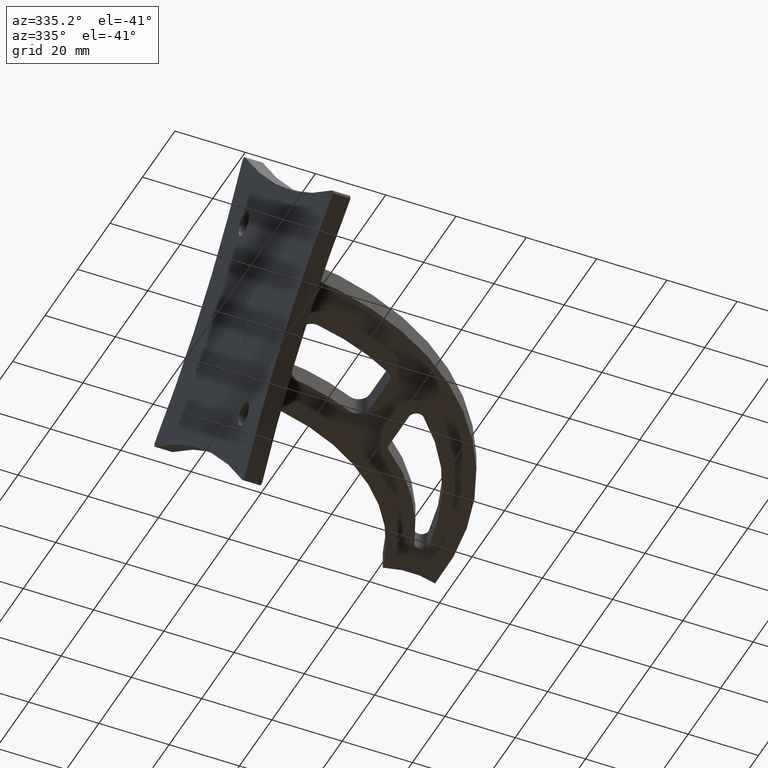
[diagram: clean part render]
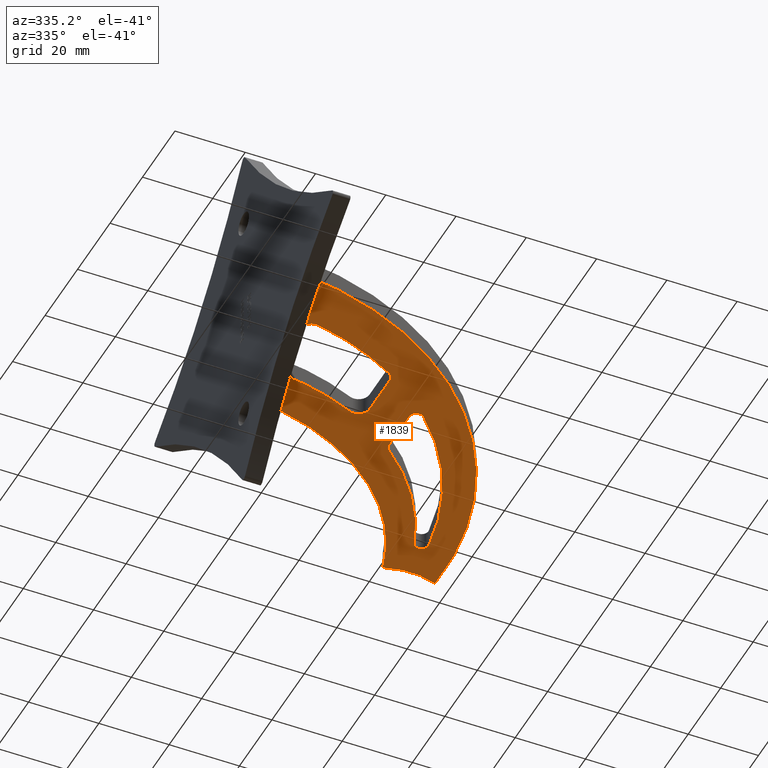
[diagram: same view with one face highlighted and labeled with its STEP entity id]
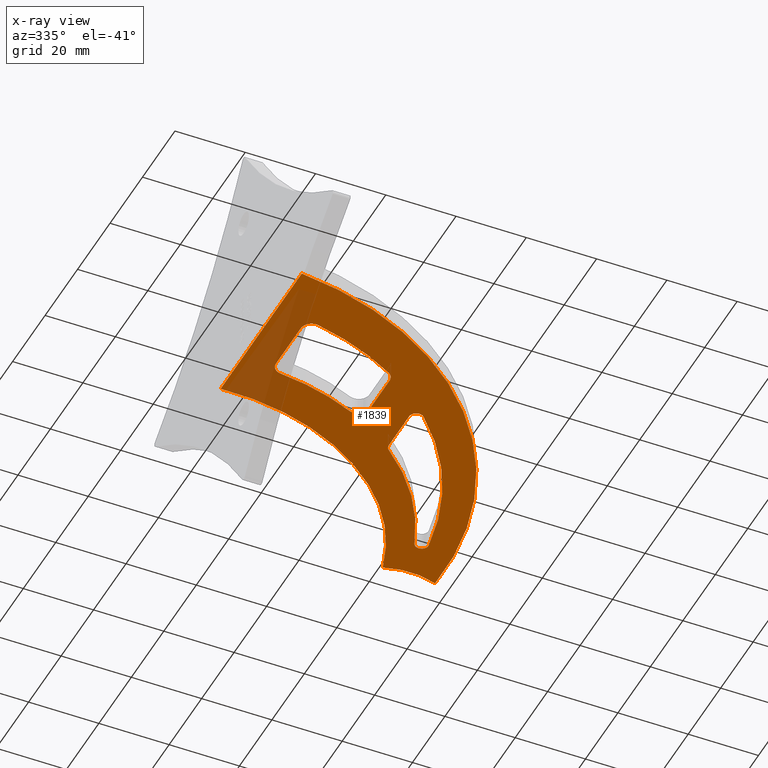
[diagram: x-ray of the same camera — body ghosted, the highlighted face saturated]
A machine part, auxiliary view. The second image highlights one B-rep face of the part: STEP entity #1839.
The next image is the same camera in x-ray: the body ghosted, the highlighted face saturated — about 14% of this face is hidden behind the body in this view.
In plain terms, the highlighted planar face has unit normal (-0, 0, 1).
Its self-contained STEP definition (entity closure, byte-faithful):
#3 = EDGE_LOOP ( 'NONE', ( #8002, #1639, #2009, #7990, #4863, #215 ) ) ;
#71 = CARTESIAN_POINT ( 'NONE',  ( 70.98734158708305131, 59.27709275273562639, 0.000000000000000000 ) ) ;
#215 = ORIENTED_EDGE ( 'NONE', *, *, #4008, .T. ) ;
#264 = AXIS2_PLACEMENT_3D ( 'NONE', #4804, #11192, #5710 ) ;
#277 = EDGE_LOOP ( 'NONE', ( #1228, #3364, #11414, #5668, #8763, #8888, #3012, #3107 ) ) ;
#311 = VERTEX_POINT ( 'NONE', #8605 ) ;
#359 = FACE_BOUND ( 'NONE', #277, .T. ) ;
#433 = EDGE_CURVE ( 'NONE', #10063, #11426, #7644, .T. ) ;
#461 = EDGE_CURVE ( 'NONE', #9744, #7342, #9773, .T. ) ;
#463 = DIRECTION ( 'NONE',  ( -0.000000000000000000, 0.000000000000000000, 1.000000000000000000 ) ) ;
#464 = CARTESIAN_POINT ( 'NONE',  ( 82.44622500956498357, 71.35072462010447225, 0.000000000000000000 ) ) ;
#644 = CIRCLE ( 'NONE', #11075, 2.000000000000001776 ) ;
#699 = CARTESIAN_POINT ( 'NONE',  ( -3.228785158426567659, 68.71510787128258357, 0.000000000000000000 ) ) ;
#724 = EDGE_CURVE ( 'NONE', #9744, #10556, #644, .T. ) ;
#1095 = CARTESIAN_POINT ( 'NONE',  ( 48.77328832485038390, 27.07069534578396741, 0.000000000000000000 ) ) ;
#1121 = EDGE_CURVE ( 'NONE', #1692, #10556, #11480, .T. ) ;
#1228 = ORIENTED_EDGE ( 'NONE', *, *, #433, .T. ) ;
#1298 = CARTESIAN_POINT ( 'NONE',  ( 50.77328832485039101, 27.07069534578396741, 0.000000000000000000 ) ) ;
#1424 = DIRECTION ( 'NONE',  ( 1.000000000000000000, 0.000000000000000000, 0.000000000000000000 ) ) ;
#1432 = VERTEX_POINT ( 'NONE', #5832 ) ;
#1506 = DIRECTION ( 'NONE',  ( -0.000000000000000000, 0.000000000000000000, 1.000000000000000000 ) ) ;
#1522 = DIRECTION ( 'NONE',  ( -5.534859863582859304E-16, 1.000000000000000000, 0.000000000000000000 ) ) ;
#1639 = ORIENTED_EDGE ( 'NONE', *, *, #461, .F. ) ;
#1692 = VERTEX_POINT ( 'NONE', #7865 ) ;
#1705 = DIRECTION ( 'NONE',  ( 1.000000000000000000, 0.000000000000000000, 0.000000000000000000 ) ) ;
#1839 = ADVANCED_FACE ( 'NONE', ( #10036, #3068, #359 ), #8224, .F. ) ;
#1879 = ORIENTED_EDGE ( 'NONE', *, *, #2036, .T. ) ;
#1979 = CARTESIAN_POINT ( 'NONE',  ( 38.27567402808483621, 16.22450941500441246, 0.000000000000000000 ) ) ;
#2009 = ORIENTED_EDGE ( 'NONE', *, *, #724, .T. ) ;
#2024 = EDGE_CURVE ( 'NONE', #3680, #9418, #7621, .T. ) ;
#2029 = CARTESIAN_POINT ( 'NONE',  ( 36.80419257749877460, 1.106397339219425291, 0.000000000000000000 ) ) ;
#2036 = EDGE_CURVE ( 'NONE', #9418, #311, #8616, .T. ) ;
#2074 = EDGE_CURVE ( 'NONE', #10405, #6074, #9478, .T. ) ;
#2171 = CIRCLE ( 'NONE', #5647, 21.20000000000006679 ) ;
#2207 = AXIS2_PLACEMENT_3D ( 'NONE', #9162, #3735, #5575 ) ;
#2260 = CARTESIAN_POINT ( 'NONE',  ( 74.66270863691524085, 58.39560010474465201, 0.000000000000000000 ) ) ;
#2381 = EDGE_CURVE ( 'NONE', #10283, #10063, #10589, .T. ) ;
#2383 = DIRECTION ( 'NONE',  ( -0.000000000000000000, 0.000000000000000000, 1.000000000000000000 ) ) ;
#2418 = CARTESIAN_POINT ( 'NONE',  ( 75.00000000000000000, 91.20000000000008811, 0.000000000000000000 ) ) ;
#2438 = CIRCLE ( 'NONE', #3780, 91.81161492634942078 ) ;
#2608 = CIRCLE ( 'NONE', #11041, 78.57211366772185102 ) ;
#2620 = DIRECTION ( 'NONE',  ( -0.000000000000000000, 0.000000000000000000, 1.000000000000000000 ) ) ;
#2630 = VERTEX_POINT ( 'NONE', #10838 ) ;
#2663 = CARTESIAN_POINT ( 'NONE',  ( 50.77328832485046917, 14.42823421798353500, 0.000000000000000000 ) ) ;
#2699 = VERTEX_POINT ( 'NONE', #8926 ) ;
#2810 = DIRECTION ( 'NONE',  ( 2.245724786051271897E-16, 1.000000000000000000, 0.000000000000000000 ) ) ;
#3012 = ORIENTED_EDGE ( 'NONE', *, *, #6920, .T. ) ;
#3025 = AXIS2_PLACEMENT_3D ( 'NONE', #7173, #2620, #1705 ) ;
#3068 = FACE_BOUND ( 'NONE', #3, .T. ) ;
#3107 = ORIENTED_EDGE ( 'NONE', *, *, #2381, .T. ) ;
#3124 = CARTESIAN_POINT ( 'NONE',  ( 10.48173249005537144, 86.77038962985369608, 0.000000000000000000 ) ) ;
#3183 = CIRCLE ( 'NONE', #10475, 69.64723672089489526 ) ;
#3187 = EDGE_CURVE ( 'NONE', #10381, #11426, #3183, .T. ) ;
#3364 = ORIENTED_EDGE ( 'NONE', *, *, #3187, .F. ) ;
#3465 = DIRECTION ( 'NONE',  ( -0.000000000000000000, 0.000000000000000000, 1.000000000000000000 ) ) ;
#3532 = AXIS2_PLACEMENT_3D ( 'NONE', #6745, #4882, #9462 ) ;
#3676 = DIRECTION ( 'NONE',  ( 1.000000000000000000, 0.000000000000000000, 0.000000000000000000 ) ) ;
#3680 = VERTEX_POINT ( 'NONE', #4523 ) ;
#3735 = DIRECTION ( 'NONE',  ( -0.000000000000000000, 0.000000000000000000, 1.000000000000000000 ) ) ;
#3780 = AXIS2_PLACEMENT_3D ( 'NONE', #9288, #6486, #8285 ) ;
#3793 = CARTESIAN_POINT ( 'NONE',  ( 11.59333400792531599, 13.07933353419807254, 0.000000000000000000 ) ) ;
#3879 = AXIS2_PLACEMENT_3D ( 'NONE', #4822, #8406, #4859 ) ;
#4008 = EDGE_CURVE ( 'NONE', #1432, #5505, #10356, .T. ) ;
#4104 = AXIS2_PLACEMENT_3D ( 'NONE', #6214, #7157, #3676 ) ;
#4220 = DIRECTION ( 'NONE',  ( -0.000000000000000000, 0.000000000000000000, 1.000000000000000000 ) ) ;
#4343 = CARTESIAN_POINT ( 'NONE',  ( 38.27567402808484331, 3.687798323975083559, 0.000000000000000000 ) ) ;
#4523 = CARTESIAN_POINT ( 'NONE',  ( 5.157091764337531993E-15, 24.99999999999999289, 0.000000000000000000 ) ) ;
#4616 = LINE ( 'NONE', #7568, #6603 ) ;
#4712 = VERTEX_POINT ( 'NONE', #464 ) ;
#4804 = CARTESIAN_POINT ( 'NONE',  ( 11.80121489772131405, -5.347321622484850323, 0.000000000000000000 ) ) ;
#4822 = CARTESIAN_POINT ( 'NONE',  ( 72.77916711941185213, 58.64514238942007296, 0.000000000000000000 ) ) ;
#4859 = DIRECTION ( 'NONE',  ( 1.000000000000000000, 0.000000000000000000, 0.000000000000000000 ) ) ;
#4863 = ORIENTED_EDGE ( 'NONE', *, *, #7876, .T. ) ;
#4882 = DIRECTION ( 'NONE',  ( -0.000000000000000000, 0.000000000000000000, 1.000000000000000000 ) ) ;
#4992 = CIRCLE ( 'NONE', #2207, 3.069216124753478159 ) ;
#5024 = CARTESIAN_POINT ( 'NONE',  ( 35.24950087772251095, 16.22450941500441246, 0.000000000000000000 ) ) ;
#5139 = DIRECTION ( 'NONE',  ( 1.000000000000000000, 0.000000000000000000, 0.000000000000000000 ) ) ;
#5274 = CARTESIAN_POINT ( 'NONE',  ( 48.77328832485039811, 2.676952451027194674E-14, 0.000000000000000000 ) ) ;
#5505 = VERTEX_POINT ( 'NONE', #2260 ) ;
#5575 = DIRECTION ( 'NONE',  ( 1.000000000000000000, 0.000000000000000000, 0.000000000000000000 ) ) ;
#5629 = EDGE_CURVE ( 'NONE', #6074, #11287, #2608, .T. ) ;
#5647 = AXIS2_PLACEMENT_3D ( 'NONE', #2418, #11699, #9074 ) ;
#5668 = ORIENTED_EDGE ( 'NONE', *, *, #9706, .F. ) ;
#5710 = DIRECTION ( 'NONE',  ( 1.000000000000000000, 0.000000000000000000, 0.000000000000000000 ) ) ;
#5747 = CARTESIAN_POINT ( 'NONE',  ( 8.801214897721344244, -5.347321622484851211, 0.000000000000000000 ) ) ;
#5785 = EDGE_CURVE ( 'NONE', #2630, #3680, #5883, .T. ) ;
#5795 = DIRECTION ( 'NONE',  ( -0.000000000000000000, 0.000000000000000000, 1.000000000000000000 ) ) ;
#5832 = CARTESIAN_POINT ( 'NONE',  ( 52.18377762432612599, 13.01030617465236183, 0.000000000000000000 ) ) ;
#5883 = LINE ( 'NONE', #7362, #8314 ) ;
#5911 = ORIENTED_EDGE ( 'NONE', *, *, #2024, .T. ) ;
#6057 = CARTESIAN_POINT ( 'NONE',  ( 34.00260676630352208, 18.98185941289779066, 0.000000000000000000 ) ) ;
#6074 = VERTEX_POINT ( 'NONE', #8893 ) ;
#6214 = CARTESIAN_POINT ( 'NONE',  ( 0.000000000000000000, 0.000000000000000000, 0.000000000000000000 ) ) ;
#6356 = CARTESIAN_POINT ( 'NONE',  ( 5.305395790953730817, 82.44214356836494062, 0.000000000000000000 ) ) ;
#6438 = CARTESIAN_POINT ( 'NONE',  ( 50.59001589773809826, 43.33872253927216889, 0.000000000000000000 ) ) ;
#6486 = DIRECTION ( 'NONE',  ( -0.000000000000000000, 0.000000000000000000, 1.000000000000000000 ) ) ;
#6603 = VECTOR ( 'NONE', #11253, 1000.000000000000000 ) ;
#6727 = CARTESIAN_POINT ( 'NONE',  ( 49.50407280127004839, 28.61636411842016869, 0.000000000000000000 ) ) ;
#6745 = CARTESIAN_POINT ( 'NONE',  ( 3.478165103966645244, 94.35427458616767638, 0.000000000000000000 ) ) ;
#6782 = AXIS2_PLACEMENT_3D ( 'NONE', #5024, #1506, #1424 ) ;
#6920 = EDGE_CURVE ( 'NONE', #11287, #10283, #8145, .T. ) ;
#6981 = EDGE_CURVE ( 'NONE', #2630, #4712, #2438, .T. ) ;
#7149 = ORIENTED_EDGE ( 'NONE', *, *, #10953, .T. ) ;
#7157 = DIRECTION ( 'NONE',  ( -0.000000000000000000, 0.000000000000000000, 1.000000000000000000 ) ) ;
#7173 = CARTESIAN_POINT ( 'NONE',  ( 35.27567402808484331, 3.687798323975084003, 0.000000000000000000 ) ) ;
#7206 = AXIS2_PLACEMENT_3D ( 'NONE', #3124, #5795, #10400 ) ;
#7251 = DIRECTION ( 'NONE',  ( 1.000000000000000000, 0.000000000000000000, 0.000000000000000000 ) ) ;
#7342 = VERTEX_POINT ( 'NONE', #71 ) ;
#7362 = CARTESIAN_POINT ( 'NONE',  ( -4.572202007906463202E-16, 1.026790737598893807E-31, 0.000000000000000000 ) ) ;
#7568 = CARTESIAN_POINT ( 'NONE',  ( 8.801214897721344244, 0.000000000000000000, 0.000000000000000000 ) ) ;
#7621 = CIRCLE ( 'NONE', #3532, 69.44143601527898113 ) ;
#7633 = VECTOR ( 'NONE', #9005, 1000.000000000000000 ) ;
#7644 = CIRCLE ( 'NONE', #6782, 3.026173150362333697 ) ;
#7673 = DIRECTION ( 'NONE',  ( 1.000000000000000000, 0.000000000000000000, 0.000000000000000000 ) ) ;
#7704 = EDGE_LOOP ( 'NONE', ( #5911, #1879, #7149, #8275, #11079 ) ) ;
#7865 = CARTESIAN_POINT ( 'NONE',  ( 48.77328832485039101, 14.42823421798353323, 0.000000000000000000 ) ) ;
#7876 = EDGE_CURVE ( 'NONE', #1692, #1432, #8436, .T. ) ;
#7990 = ORIENTED_EDGE ( 'NONE', *, *, #1121, .F. ) ;
#8002 = ORIENTED_EDGE ( 'NONE', *, *, #9668, .T. ) ;
#8043 = DIRECTION ( 'NONE',  ( -0.000000000000000000, 0.000000000000000000, 1.000000000000000000 ) ) ;
#8064 = DIRECTION ( 'NONE',  ( -0.000000000000000000, 0.000000000000000000, 1.000000000000000000 ) ) ;
#8145 = CIRCLE ( 'NONE', #3025, 3.000000000000002665 ) ;
#8224 = PLANE ( 'NONE',  #4104 ) ;
#8275 = ORIENTED_EDGE ( 'NONE', *, *, #6981, .F. ) ;
#8285 = DIRECTION ( 'NONE',  ( 1.000000000000000000, 0.000000000000000000, 0.000000000000000000 ) ) ;
#8314 = VECTOR ( 'NONE', #2810, 1000.000000000000000 ) ;
#8345 = AXIS2_PLACEMENT_3D ( 'NONE', #2663, #3465, #7251 ) ;
#8406 = DIRECTION ( 'NONE',  ( -0.000000000000000000, 0.000000000000000000, 1.000000000000000000 ) ) ;
#8436 = CIRCLE ( 'NONE', #8345, 2.000000000000078160 ) ;
#8605 = CARTESIAN_POINT ( 'NONE',  ( 67.55377499043559908, 71.35072462010423067, 0.000000000000000000 ) ) ;
#8616 = CIRCLE ( 'NONE', #7206, 59.11839057499874173 ) ;
#8678 = DIRECTION ( 'NONE',  ( 1.000000000000000000, 0.000000000000000000, 0.000000000000000000 ) ) ;
#8738 = CIRCLE ( 'NONE', #3879, 1.899999999999999023 ) ;
#8763 = ORIENTED_EDGE ( 'NONE', *, *, #2074, .T. ) ;
#8888 = ORIENTED_EDGE ( 'NONE', *, *, #5629, .T. ) ;
#8893 = CARTESIAN_POINT ( 'NONE',  ( 12.39786355527632011, -8.287391414077818652, 0.000000000000000000 ) ) ;
#8926 = CARTESIAN_POINT ( 'NONE',  ( 8.801214897721344244, 10.02265153160531597, 0.000000000000000000 ) ) ;
#8960 = CARTESIAN_POINT ( 'NONE',  ( 38.27567402808484331, 2.118504919296276190E-14, 0.000000000000000000 ) ) ;
#9005 = DIRECTION ( 'NONE',  ( -5.488562577937286030E-16, 1.000000000000000000, 0.000000000000000000 ) ) ;
#9074 = DIRECTION ( 'NONE',  ( 1.000000000000000000, 0.000000000000000000, 0.000000000000000000 ) ) ;
#9162 = CARTESIAN_POINT ( 'NONE',  ( 11.87043102247482196, 10.02265153160531597, 0.000000000000000000 ) ) ;
#9173 = VECTOR ( 'NONE', #1522, 1000.000000000000000 ) ;
#9288 = CARTESIAN_POINT ( 'NONE',  ( -9.228914948393255102, 66.34659142113400776, 0.000000000000000000 ) ) ;
#9418 = VERTEX_POINT ( 'NONE', #6438 ) ;
#9462 = DIRECTION ( 'NONE',  ( 1.000000000000000000, 0.000000000000000000, 0.000000000000000000 ) ) ;
#9478 = CIRCLE ( 'NONE', #264, 2.999999999999971578 ) ;
#9526 = EDGE_CURVE ( 'NONE', #10381, #2699, #4992, .T. ) ;
#9606 = AXIS2_PLACEMENT_3D ( 'NONE', #10621, #2383, #8678 ) ;
#9668 = EDGE_CURVE ( 'NONE', #5505, #7342, #8738, .T. ) ;
#9706 = EDGE_CURVE ( 'NONE', #10405, #2699, #4616, .T. ) ;
#9718 = CARTESIAN_POINT ( 'NONE',  ( -3.228785158426567659, 68.71510787128258357, 0.000000000000000000 ) ) ;
#9744 = VERTEX_POINT ( 'NONE', #6727 ) ;
#9773 = CIRCLE ( 'NONE', #9606, 69.64723672089482420 ) ;
#9913 = DIRECTION ( 'NONE',  ( 1.000000000000000000, 0.000000000000000000, 0.000000000000000000 ) ) ;
#10036 = FACE_OUTER_BOUND ( 'NONE', #7704, .T. ) ;
#10063 = VERTEX_POINT ( 'NONE', #1979 ) ;
#10182 = AXIS2_PLACEMENT_3D ( 'NONE', #9718, #4220, #5139 ) ;
#10283 = VERTEX_POINT ( 'NONE', #4343 ) ;
#10356 = CIRCLE ( 'NONE', #10182, 78.57211366772187944 ) ;
#10381 = VERTEX_POINT ( 'NONE', #3793 ) ;
#10400 = DIRECTION ( 'NONE',  ( 1.000000000000000000, 0.000000000000000000, 0.000000000000000000 ) ) ;
#10405 = VERTEX_POINT ( 'NONE', #5747 ) ;
#10475 = AXIS2_PLACEMENT_3D ( 'NONE', #6356, #8043, #9913 ) ;
#10556 = VERTEX_POINT ( 'NONE', #1095 ) ;
#10589 = LINE ( 'NONE', #8960, #9173 ) ;
#10621 = CARTESIAN_POINT ( 'NONE',  ( 5.305395790953730817, 82.44214356836494062, 0.000000000000000000 ) ) ;
#10838 = CARTESIAN_POINT ( 'NONE',  ( 5.551115123125776391E-14, -24.99999999999999289, 0.000000000000000000 ) ) ;
#10953 = EDGE_CURVE ( 'NONE', #311, #4712, #2171, .T. ) ;
#11041 = AXIS2_PLACEMENT_3D ( 'NONE', #699, #8064, #11685 ) ;
#11075 = AXIS2_PLACEMENT_3D ( 'NONE', #1298, #463, #7673 ) ;
#11079 = ORIENTED_EDGE ( 'NONE', *, *, #5785, .T. ) ;
#11192 = DIRECTION ( 'NONE',  ( -0.000000000000000000, 0.000000000000000000, 1.000000000000000000 ) ) ;
#11253 = DIRECTION ( 'NONE',  ( 0.000000000000000000, 1.000000000000000000, -0.000000000000000000 ) ) ;
#11287 = VERTEX_POINT ( 'NONE', #2029 ) ;
#11414 = ORIENTED_EDGE ( 'NONE', *, *, #9526, .T. ) ;
#11426 = VERTEX_POINT ( 'NONE', #6057 ) ;
#11480 = LINE ( 'NONE', #5274, #7633 ) ;
#11685 = DIRECTION ( 'NONE',  ( 1.000000000000000000, 0.000000000000000000, 0.000000000000000000 ) ) ;
#11699 = DIRECTION ( 'NONE',  ( -0.000000000000000000, 0.000000000000000000, 1.000000000000000000 ) ) ;